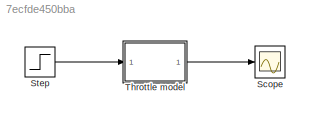
MODEL slx_7ecfde450bba
KIND model
CONFIG AbsTol = auto
CONFIG EnableMultiTasking = off
CONFIG FixedStep = auto
CONFIG MaxStep = auto
CONFIG MinStep = auto
CONFIG RelTol = 1e-3
CONFIG SampleTimeConstraint = Unconstrained
CONFIG SolverName = VariableStepAuto
CONFIG StartTime = 0.0
CONFIG StopTime = 10.0
BLOCK [Scope] Scope
  Floating = off
  NumInputPorts = 1
  Ports = [1]
  ScopeSpecificationString = Simulink.scopes.TimeScopeBlockCfg('CurrentConfiguration', extmgr.ConfigurationSet(extmgr.Configuration('Core','General UI',true),extmgr.Configuration('Core','Source UI',true),extmgr.Configuration('Sources','WiredSimulink',true,'DataLoggingVariableName','ScopeData1'),extmgr.Configuration('Visuals','Time Domain',true,'SerializedDisplays',{struct('MinYLimReal','-15.29893','MaxYLimReal','137.69035','Y...<+1743ch>
BLOCK [Step] Step
  After = 10
  SampleTime = 0
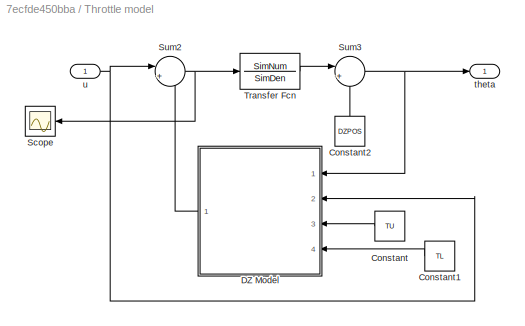
BLOCK [SubSystem] Throttle model
  NameLocation = top
  Ports = [1, 1]
  RequestExecContextInheritance = off
BLOCK [Constant] Throttle model/Constant
  Value = TU
BLOCK [Constant] Throttle model/Constant1
  Value = TL
BLOCK [Constant] Throttle model/Constant2
  NameLocation = left
  Value = DZPOS
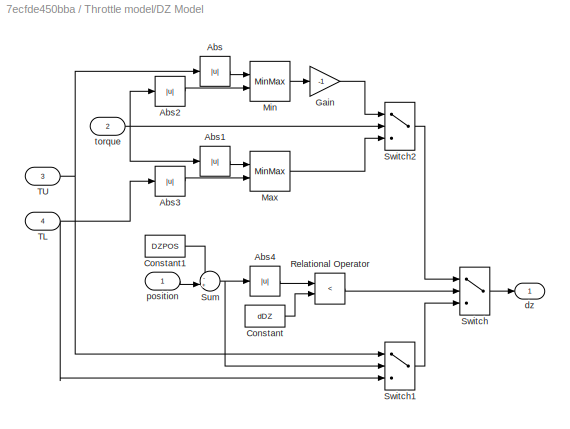
BLOCK [SubSystem] Throttle model/DZ Model
  Ports = [4, 1]
  RequestExecContextInheritance = off
BLOCK [Abs] Throttle model/DZ Model/Abs
BLOCK [Abs] Throttle model/DZ Model/Abs1
BLOCK [Abs] Throttle model/DZ Model/Abs2
BLOCK [Abs] Throttle model/DZ Model/Abs3
BLOCK [Abs] Throttle model/DZ Model/Abs4
BLOCK [Constant] Throttle model/DZ Model/Constant
  Value = dDZ
BLOCK [Constant] Throttle model/DZ Model/Constant1
  Value = DZPOS
BLOCK [Gain] Throttle model/DZ Model/Gain
  Gain = -1
  OutDataTypeStr = Inherit: Same as input
  ParamDataTypeStr = Inherit: Same as input
  SaturateOnIntegerOverflow = on
BLOCK [MinMax] Throttle model/DZ Model/Max
  InputSameDT = on
  Inputs = 2
  Ports = [2, 1]
  SaturateOnIntegerOverflow = on
BLOCK [MinMax] Throttle model/DZ Model/Min
  InputSameDT = on
  Inputs = 2
  Ports = [2, 1]
  SaturateOnIntegerOverflow = on
BLOCK [RelationalOperator] Throttle model/DZ Model/Relational Operator
  Operator = <
  Ports = [2, 1]
BLOCK [Sum] Throttle model/DZ Model/Sum
  InputSameDT = on
  Inputs = -+|
  OutDataTypeStr = Inherit: Same as first input
  Ports = [2, 1]
  SaturateOnIntegerOverflow = on
BLOCK [Switch] Throttle model/DZ Model/Switch
  Threshold = 0.5
BLOCK [Switch] Throttle model/DZ Model/Switch1
BLOCK [Switch] Throttle model/DZ Model/Switch2
BLOCK [Inport] Throttle model/DZ Model/TL
  Port = 4
BLOCK [Inport] Throttle model/DZ Model/TU
  Port = 3
BLOCK [Outport] Throttle model/DZ Model/dz
  InitialOutput = 0
BLOCK [Inport] Throttle model/DZ Model/position
BLOCK [Inport] Throttle model/DZ Model/torque
  Port = 2
BLOCK [Scope] Throttle model/Scope
  Floating = off
  NameLocation = top
  NumInputPorts = 1
  Ports = [1]
  ScopeSpecificationString = Simulink.scopes.TimeScopeBlockCfg('CurrentConfiguration', extmgr.ConfigurationSet(extmgr.Configuration('Core','General UI',true),extmgr.Configuration('Core','Source UI',true),extmgr.Configuration('Sources','WiredSimulink',true,'DataLoggingSaveFormat','StructureWithTime','DataLoggingLimitDataPoints',true,'DataLoggingDecimation','1','DataLoggingDecimateData',true),extmgr.Configuration('Visuals','Tim...<+1943ch>
BLOCK [Sum] Throttle model/Sum2
  InputSameDT = on
  Inputs = |++
  OutDataTypeStr = Inherit: Same as first input
  Ports = [2, 1]
  SaturateOnIntegerOverflow = on
BLOCK [Sum] Throttle model/Sum3
  InputSameDT = on
  Inputs = |++
  OutDataTypeStr = Inherit: Same as first input
  Ports = [2, 1]
  SaturateOnIntegerOverflow = on
BLOCK [TransferFcn] Throttle model/Transfer Fcn
  Denominator = SimDen
  Numerator = SimNum
BLOCK [Outport] Throttle model/theta
BLOCK [Inport] Throttle model/u
LINE Step:1 -> Throttle model:1
LINE Throttle model/Constant1:1 -> Throttle model/DZ Model:4
LINE Throttle model/Constant2:1 -> Throttle model/Sum3:2
LINE Throttle model/Constant:1 -> Throttle model/DZ Model:3
LINE Throttle model/DZ Model/Abs1:1 -> Throttle model/DZ Model/Max:1
LINE Throttle model/DZ Model/Abs2:1 -> Throttle model/DZ Model/Min:2
LINE Throttle model/DZ Model/Abs3:1 -> Throttle model/DZ Model/Max:2
LINE Throttle model/DZ Model/Abs4:1 -> Throttle model/DZ Model/Relational Operator:1
LINE Throttle model/DZ Model/Abs:1 -> Throttle model/DZ Model/Min:1
LINE Throttle model/DZ Model/Constant1:1 -> Throttle model/DZ Model/Sum:1
LINE Throttle model/DZ Model/Constant:1 -> Throttle model/DZ Model/Relational Operator:2
LINE Throttle model/DZ Model/Gain:1 -> Throttle model/DZ Model/Switch2:1
LINE Throttle model/DZ Model/Max:1 -> Throttle model/DZ Model/Switch2:3
LINE Throttle model/DZ Model/Min:1 -> Throttle model/DZ Model/Gain:1
LINE Throttle model/DZ Model/Relational Operator:1 -> Throttle model/DZ Model/Switch:2
NET Throttle model/DZ Model/Sum:1 -> Throttle model/DZ Model/Abs4:1, Throttle model/DZ Model/Switch1:2
LINE Throttle model/DZ Model/Switch1:1 -> Throttle model/DZ Model/Switch:3
LINE Throttle model/DZ Model/Switch2:1 -> Throttle model/DZ Model/Switch:1
LINE Throttle model/DZ Model/Switch:1 -> Throttle model/DZ Model/dz:1
NET Throttle model/DZ Model/TL:1 -> Throttle model/DZ Model/Abs3:1, Throttle model/DZ Model/Switch1:3
NET Throttle model/DZ Model/TU:1 -> Throttle model/DZ Model/Abs:1, Throttle model/DZ Model/Switch1:1
LINE Throttle model/DZ Model/position:1 -> Throttle model/DZ Model/Sum:2
NET Throttle model/DZ Model/torque:1 -> Throttle model/DZ Model/Abs1:1, Throttle model/DZ Model/Abs2:1, Throttle model/DZ Model/Switch2:2
LINE Throttle model/DZ Model:1 -> Throttle model/Sum2:2
NET Throttle model/Sum2:1 -> Throttle model/Scope:1, Throttle model/Transfer Fcn:1
NET Throttle model/Sum3:1 -> Throttle model/DZ Model:1, Throttle model/theta:1
LINE Throttle model/Transfer Fcn:1 -> Throttle model/Sum3:1
NET Throttle model/u:1 -> Throttle model/DZ Model:2, Throttle model/Sum2:1
LINE Throttle model:1 -> Scope:1
note: NET lines group one-source signal fan-out (src -> all destinations, sorted); 1:1 wires keep LINE
